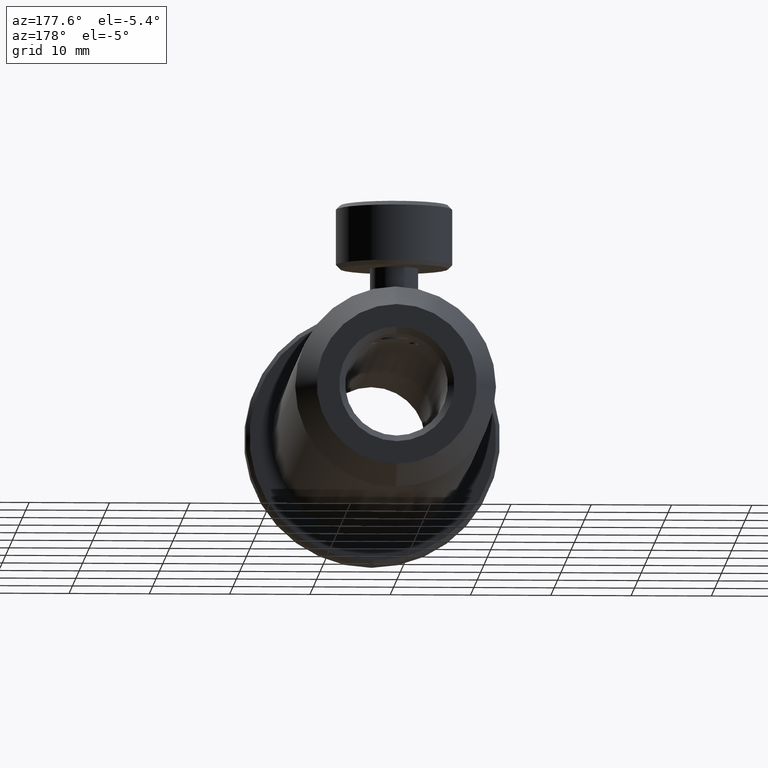
[diagram: clean part render]
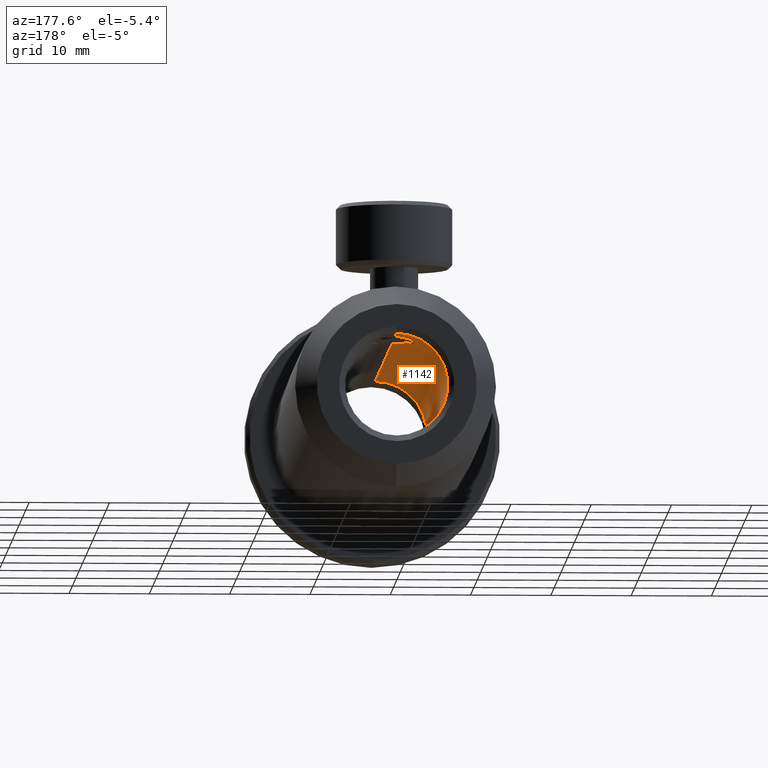
[diagram: same view with one face highlighted and labeled with its STEP entity id]
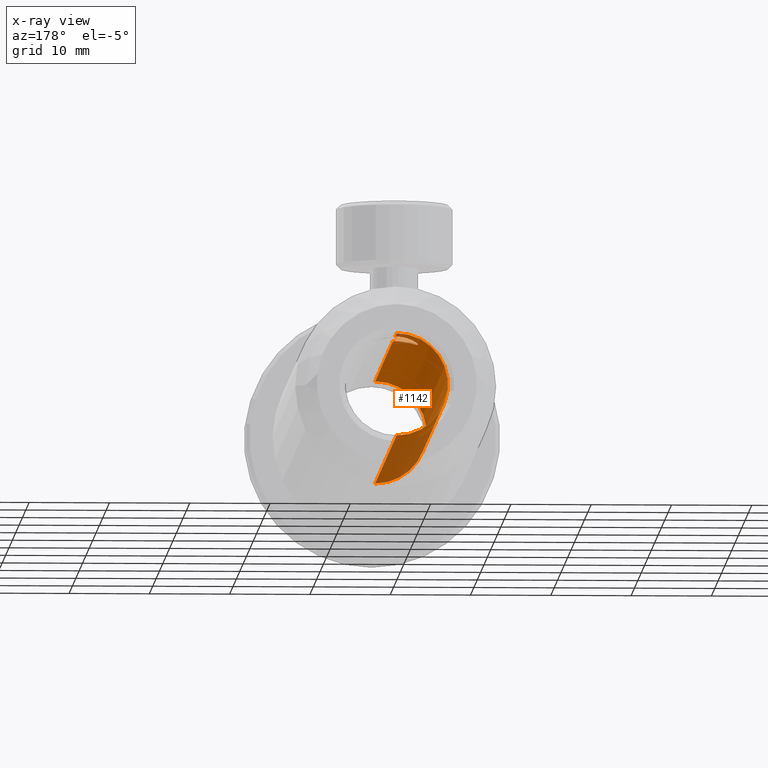
[diagram: x-ray of the same camera — body ghosted, the highlighted face saturated]
A machine part, auxiliary view. The second image highlights one B-rep face of the part: STEP entity #1142.
The next image is the same camera in x-ray: the body ghosted, the highlighted face saturated — about 26% of this face is hidden behind the body in this view.
In plain terms, the highlighted cylindrical surface (partial cylindrical patch) has radius 6.3881 mm, axis along (-0, 1, -0).
Its self-contained STEP definition (entity closure, byte-faithful):
#21 = CARTESIAN_POINT ( 'NONE',  ( -19.46745294720415800, 49.69273371868610000, 17.64047287566521400 ) ) ;
#35 = CARTESIAN_POINT ( 'NONE',  ( -19.03357241822883200, 50.33728196142718000, 17.82397570166628500 ) ) ;
#117 = ORIENTED_EDGE ( 'NONE', *, *, #1440, .F. ) ;
#224 = DIRECTION ( 'NONE',  ( -0.0000000000000000000, 1.000000000000000000, -0.0000000000000000000 ) ) ;
#277 = CARTESIAN_POINT ( 'NONE',  ( -19.77690416192938400, 48.35116843547334800, 17.48584233910835600 ) ) ;
#300 = CARTESIAN_POINT ( 'NONE',  ( -16.77690416192938400, 51.35116843547334800, 18.23409999999993800 ) ) ;
#313 = DIRECTION ( 'NONE',  ( 0.0000000000000000000, 0.0000000000000000000, 1.000000000000000000 ) ) ;
#320 = CARTESIAN_POINT ( 'NONE',  ( -17.17264430652420500, 51.33167249431797100, 18.22487150212393200 ) ) ;
#356 = CARTESIAN_POINT ( 'NONE',  ( -16.77690416192938400, -7.990831564526651200, 5.457900000000067900 ) ) ;
#357 = CARTESIAN_POINT ( 'NONE',  ( -19.16102767179209500, 46.51977709670250500, 17.77370362426063000 ) ) ;
#359 = LINE ( 'NONE', #771, #824 ) ;
#411 = DIRECTION ( 'NONE',  ( -0.0000000000000000000, 1.000000000000000000, -0.0000000000000000000 ) ) ;
#455 = VERTEX_POINT ( 'NONE', #3404 ) ;
#458 = VECTOR ( 'NONE', #513, 1000.000000000000000 ) ;
#489 = EDGE_CURVE ( 'NONE', #1806, #3137, #1891, .T. ) ;
#513 = DIRECTION ( 'NONE',  ( -0.0000000000000000000, 1.000000000000000000, -0.0000000000000000000 ) ) ;
#545 = LINE ( 'NONE', #2172, #458 ) ;
#560 = ORIENTED_EDGE ( 'NONE', *, *, #3174, .F. ) ;
#567 = CARTESIAN_POINT ( 'NONE',  ( -16.77690416192938400, 55.67394387481526500, 18.23409999999994100 ) ) ;
#578 = CARTESIAN_POINT ( 'NONE',  ( -16.77690416192938400, 10.85402768764679000, 11.84600000000000000 ) ) ;
#595 = CARTESIAN_POINT ( 'NONE',  ( -17.56485511370450300, 51.25274524893698900, 18.18837693615331500 ) ) ;
#731 = CARTESIAN_POINT ( 'NONE',  ( -18.11866624060954600, 45.66075770220543700, 18.09431748116712400 ) ) ;
#771 = CARTESIAN_POINT ( 'NONE',  ( -16.77690416192938400, 10.85402768764679000, 18.23409999999993800 ) ) ;
#824 = VECTOR ( 'NONE', #224, 1000.000000000000000 ) ;
#839 = AXIS2_PLACEMENT_3D ( 'NONE', #1827, #411, #1795 ) ;
#853 = DIRECTION ( 'NONE',  ( -0.0000000000000000000, 1.000000000000000000, -0.0000000000000000000 ) ) ;
#979 = EDGE_CURVE ( 'NONE', #2175, #3137, #3422, .T. ) ;
#1009 = CIRCLE ( 'NONE', #3412, 6.388099999999933100 ) ;
#1138 = CARTESIAN_POINT ( 'NONE',  ( -19.75657686655143100, 48.75193636487751500, 17.49678035711502800 ) ) ;
#1142 = ADVANCED_FACE ( 'NONE', ( #3088 ), #1533, .F. ) ;
#1144 = CARTESIAN_POINT ( 'NONE',  ( -18.11413303980188500, 51.04373225631482600, 18.09525238348843200 ) ) ;
#1292 = CARTESIAN_POINT ( 'NONE',  ( -16.77690416192938400, 45.35116843547334000, 18.23409999999993800 ) ) ;
#1365 = AXIS2_PLACEMENT_3D ( 'NONE', #578, #2708, #3097 ) ;
#1421 = EDGE_LOOP ( 'NONE', ( #2038, #3468, #2837, #1555, #117, #3040, #560 ) ) ;
#1440 = EDGE_CURVE ( 'NONE', #3314, #2175, #2111, .T. ) ;
#1443 = CARTESIAN_POINT ( 'NONE',  ( -19.77690416192938400, 48.35116843547334800, 17.48584233910835600 ) ) ;
#1533 = CYLINDRICAL_SURFACE ( 'NONE', #1365, 6.388099999999936600 ) ;
#1555 = ORIENTED_EDGE ( 'NONE', *, *, #979, .F. ) ;
#1594 = CARTESIAN_POINT ( 'NONE',  ( -18.76489872019157400, 46.09615878824137500, 17.91860652953319300 ) ) ;
#1608 = CARTESIAN_POINT ( 'NONE',  ( -17.75615315927152000, 45.50868593057175100, 18.16128845124649200 ) ) ;
#1696 = CARTESIAN_POINT ( 'NONE',  ( -19.15848880117488000, 50.18575546165900600, 17.77471766134349500 ) ) ;
#1710 = CARTESIAN_POINT ( 'NONE',  ( -19.67824335756378000, 49.13939126677429700, 17.53739692368247200 ) ) ;
#1773 = CARTESIAN_POINT ( 'NONE',  ( -16.77690416192938400, -7.990831564526651200, 18.23409999999993400 ) ) ;
#1795 = DIRECTION ( 'NONE',  ( 0.0000000000000000000, 0.0000000000000000000, 1.000000000000000000 ) ) ;
#1801 = CARTESIAN_POINT ( 'NONE',  ( -19.62018958806290300, 47.37456055396580700, 17.56705841299525200 ) ) ;
#1806 = VERTEX_POINT ( 'NONE', #2544 ) ;
#1827 = CARTESIAN_POINT ( 'NONE',  ( -16.77690416192938400, 55.67394387481526500, 11.84600000000000000 ) ) ;
#1877 = CARTESIAN_POINT ( 'NONE',  ( -17.17603616688994400, 45.37126331725904300, 18.22459337564951200 ) ) ;
#1891 = CIRCLE ( 'NONE', #839, 6.388099999999940200 ) ;
#1984 = CARTESIAN_POINT ( 'NONE',  ( -18.61178909286631700, 50.73264014101711400, 17.96721635625182100 ) ) ;
#1997 = CARTESIAN_POINT ( 'NONE',  ( -17.75404945137203700, 51.19427731211536800, 18.16157784432050400 ) ) ;
#2007 = CARTESIAN_POINT ( 'NONE',  ( -19.77690416192939100, 48.55020498121657400, 17.48584233910835900 ) ) ;
#2038 = ORIENTED_EDGE ( 'NONE', *, *, #3450, .F. ) ;
#2064 = CARTESIAN_POINT ( 'NONE',  ( -19.37808209258889700, 46.84388196002984000, 17.68171662612250500 ) ) ;
#2111 = B_SPLINE_CURVE_WITH_KNOTS ( 'NONE', 3,
 ( #1443, #2007, #1138, #1710, #2511, #21, #2553, #1696, #35, #3385, #1984, #2541, #1144, #1997, #595, #320, #2810, #300 ),
 .UNSPECIFIED., .F., .F.,
 ( 4, 2, 2, 2, 2, 2, 2, 2, 4 ),
 ( 0.004763278397399953400, 0.005358073397235271200, 0.005952868397070589100, 0.006547663396905907900, 0.007142458396741225800, 0.007737253396576543700, 0.008332048396411861600, 0.008926843396247179400, 0.009521638396082497300 ),
 .UNSPECIFIED. ) ;
#2172 = CARTESIAN_POINT ( 'NONE',  ( -16.77690416192938400, 10.85402768764679000, 5.457900000000064400 ) ) ;
#2175 = VERTEX_POINT ( 'NONE', #2974 ) ;
#2283 = VECTOR ( 'NONE', #3085, 1000.000000000000000 ) ;
#2292 = CARTESIAN_POINT ( 'NONE',  ( -19.03726127536427600, 46.36925607804335700, 17.82257578768591300 ) ) ;
#2332 = CARTESIAN_POINT ( 'NONE',  ( -19.67922691479795500, 47.56642430546870100, 17.53689410720266700 ) ) ;
#2346 = EDGE_CURVE ( 'NONE', #3305, #1806, #545, .T. ) ;
#2376 = CARTESIAN_POINT ( 'NONE',  ( -19.46981735146134400, 47.01466047727380000, 17.63935826037125700 ) ) ;
#2390 = CARTESIAN_POINT ( 'NONE',  ( -16.97842715117683800, 45.35116843547334800, 18.23409999999993400 ) ) ;
#2511 = CARTESIAN_POINT ( 'NONE',  ( -19.61985226083813300, 49.32917471458225100, 17.56724241574105600 ) ) ;
#2541 = CARTESIAN_POINT ( 'NONE',  ( -18.28724237892192100, 50.95060850294495200, 18.05526492107689400 ) ) ;
#2544 = CARTESIAN_POINT ( 'NONE',  ( -16.77690416192938400, 55.67394387481526500, 5.457900000000061700 ) ) ;
#2553 = CARTESIAN_POINT ( 'NONE',  ( -19.37498743526511900, 49.86365587520697300, 17.68308847000193400 ) ) ;
#2708 = DIRECTION ( 'NONE',  ( -0.0000000000000000000, 1.000000000000000000, -0.0000000000000000000 ) ) ;
#2810 = CARTESIAN_POINT ( 'NONE',  ( -16.97535634742947200, 51.35116843547334800, 18.23409999999993800 ) ) ;
#2827 = CARTESIAN_POINT ( 'NONE',  ( -16.77690416192938400, 10.85402768764679000, 18.23409999999993800 ) ) ;
#2837 = ORIENTED_EDGE ( 'NONE', *, *, #489, .T. ) ;
#2960 = CARTESIAN_POINT ( 'NONE',  ( -19.77690416192938400, 48.35116843547334800, 17.48584233910835600 ) ) ;
#2974 = CARTESIAN_POINT ( 'NONE',  ( -16.77690416192938400, 51.35116843547334800, 18.23409999999993800 ) ) ;
#2981 = CARTESIAN_POINT ( 'NONE',  ( -18.29007522432377500, 45.75338561217405700, 18.05456963270247100 ) ) ;
#3040 = ORIENTED_EDGE ( 'NONE', *, *, #3288, .F. ) ;
#3085 = DIRECTION ( 'NONE',  ( -0.0000000000000000000, 1.000000000000000000, -0.0000000000000000000 ) ) ;
#3088 = FACE_OUTER_BOUND ( 'NONE', #1421, .T. ) ;
#3097 = DIRECTION ( 'NONE',  ( 0.0000000000000000000, 0.0000000000000000000, 1.000000000000000000 ) ) ;
#3137 = VERTEX_POINT ( 'NONE', #567 ) ;
#3152 = B_SPLINE_CURVE_WITH_KNOTS ( 'NONE', 3,
 ( #1292, #2390, #1877, #3257, #1608, #731, #2981, #3249, #1594, #2292, #357, #2064, #2376, #1801, #2332, #3340, #3330, #277 ),
 .UNSPECIFIED., .F., .F.,
 ( 4, 2, 2, 2, 2, 2, 2, 2, 4 ),
 ( 0.0000000000000000000, 0.0005954097996749941700, 0.001190819599349988300, 0.001786229399024982600, 0.002381639198699976700, 0.002977048998374970700, 0.003572458798049965200, 0.004167868597724958900, 0.004763278397399953400 ),
 .UNSPECIFIED. ) ;
#3174 = EDGE_CURVE ( 'NONE', #3364, #455, #359, .T. ) ;
#3249 = CARTESIAN_POINT ( 'NONE',  ( -18.61418919577797800, 45.97155797039874900, 17.96649076893176700 ) ) ;
#3257 = CARTESIAN_POINT ( 'NONE',  ( -17.56390832772439500, 45.44948524912012300, 18.18842731549088000 ) ) ;
#3288 = EDGE_CURVE ( 'NONE', #455, #3314, #3152, .T. ) ;
#3305 = VERTEX_POINT ( 'NONE', #356 ) ;
#3314 = VERTEX_POINT ( 'NONE', #2960 ) ;
#3330 = CARTESIAN_POINT ( 'NONE',  ( -19.77690416192938400, 48.15192615895490000, 17.48584233910835900 ) ) ;
#3340 = CARTESIAN_POINT ( 'NONE',  ( -19.75725269880922500, 47.95515920563953200, 17.49642261250702900 ) ) ;
#3364 = VERTEX_POINT ( 'NONE', #1773 ) ;
#3385 = CARTESIAN_POINT ( 'NONE',  ( -18.76067244415898500, 50.60989860071804000, 17.91999444444279600 ) ) ;
#3401 = CARTESIAN_POINT ( 'NONE',  ( -16.77690416192938400, -7.990831564526651200, 11.84600000000000000 ) ) ;
#3404 = CARTESIAN_POINT ( 'NONE',  ( -16.77690416192938400, 45.35116843547334000, 18.23409999999993800 ) ) ;
#3412 = AXIS2_PLACEMENT_3D ( 'NONE', #3401, #853, #313 ) ;
#3422 = LINE ( 'NONE', #2827, #2283 ) ;
#3450 = EDGE_CURVE ( 'NONE', #3305, #3364, #1009, .T. ) ;
#3468 = ORIENTED_EDGE ( 'NONE', *, *, #2346, .T. ) ;